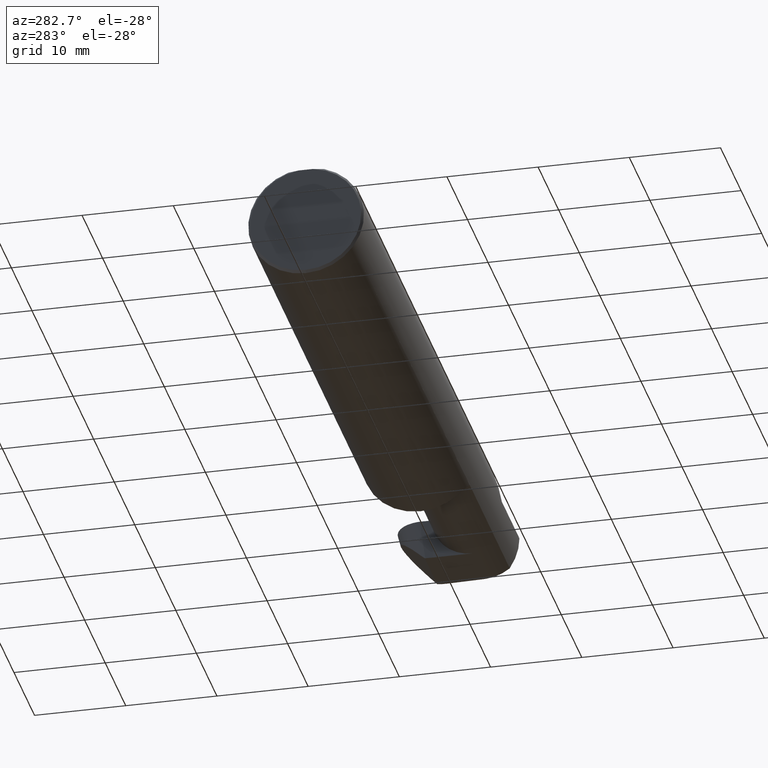
[diagram: clean part render]
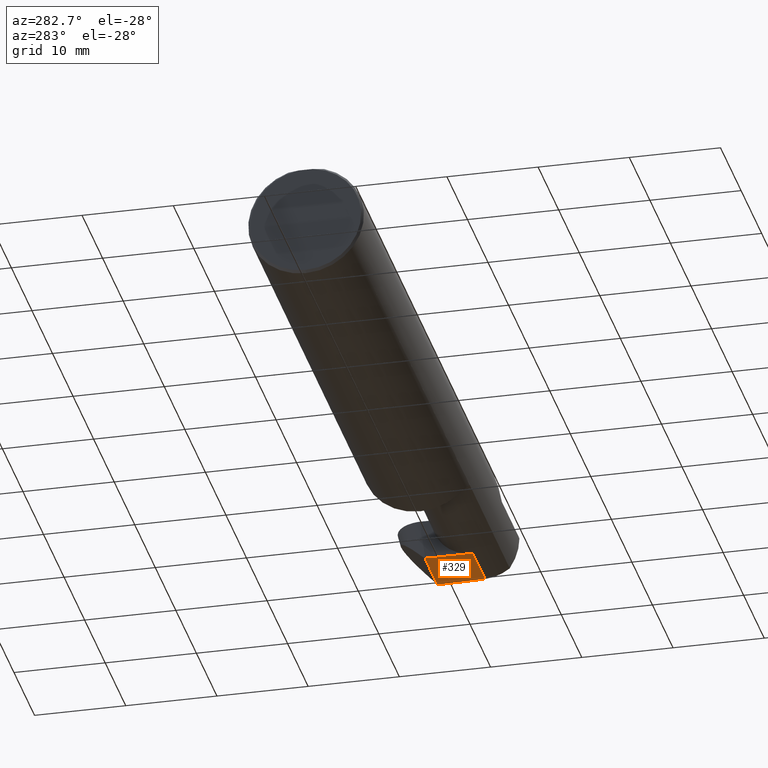
[diagram: same view with one face highlighted and labeled with its STEP entity id]
A machine part, auxiliary view. The second image highlights one B-rep face of the part: STEP entity #329.
In plain terms, the highlighted planar face has unit normal (-0, 0, 1).
Its self-contained STEP definition (entity closure, byte-faithful):
#9 = CARTESIAN_POINT ( 'NONE',  ( 2.753585465288466594, -0.1010545757111809412, -0.1750000000000000722 ) ) ;
#16 = CARTESIAN_POINT ( 'NONE',  ( 2.990641147540828104, 0.1058243371481696476, -0.1750000000000001277 ) ) ;
#24 = LINE ( 'NONE', #9, #178 ) ;
#27 = EDGE_CURVE ( 'NONE', #128, #174, #24, .T. ) ;
#28 =( BOUNDED_CURVE ( )  B_SPLINE_CURVE ( 3, ( #637, #188, #231, #290 ),
 .UNSPECIFIED., .F., .T. ) 
 B_SPLINE_CURVE_WITH_KNOTS ( ( 4, 4 ),
 ( 4.955210089620395664, 4.975001206325426750 ),
 .UNSPECIFIED. ) 
 CURVE ( )  GEOMETRIC_REPRESENTATION_ITEM ( )  RATIONAL_B_SPLINE_CURVE ( ( 1.000000000000000000, 0.9999673595746501054, 0.9999673595746501054, 1.000000000000000000 ) ) 
 REPRESENTATION_ITEM ( '' )  );
#37 = DIRECTION ( 'NONE',  ( -1.000000000000000000, -0.000000000000000000, -0.000000000000000000 ) ) ;
#59 = CARTESIAN_POINT ( 'NONE',  ( 3.402190948718819552, -0.1008499999999995372, -0.1750000000000000722 ) ) ;
#79 = CARTESIAN_POINT ( 'NONE',  ( 2.995563461189592047, 0.07983311256960280711, -0.1750000000000001277 ) ) ;
#95 =( BOUNDED_CURVE ( )  B_SPLINE_CURVE ( 3, ( #375, #416, #79, #364 ),
 .UNSPECIFIED., .F., .T. ) 
 B_SPLINE_CURVE_WITH_KNOTS ( ( 4, 4 ),
 ( 4.339337998362998050, 4.645220385064936508 ),
 .UNSPECIFIED. ) 
 CURVE ( )  GEOMETRIC_REPRESENTATION_ITEM ( )  RATIONAL_B_SPLINE_CURVE ( ( 1.000000000000000000, 0.9922181835937360361, 0.9922181835937360361, 1.000000000000000000 ) ) 
 REPRESENTATION_ITEM ( '' )  );
#96 = CARTESIAN_POINT ( 'NONE',  ( 2.753585400763539415, -0.1008500000000000091, -0.1750000000000000444 ) ) ;
#120 = DIRECTION ( 'NONE',  ( 0.000000000000000000, -1.000000000000000000, 1.223176342469858371E-16 ) ) ;
#128 = VERTEX_POINT ( 'NONE', #96 ) ;
#139 = VECTOR ( 'NONE', #291, 39.37007874015748854 ) ;
#142 = EDGE_CURVE ( 'NONE', #174, #385, #615, .T. ) ;
#150 = DIRECTION ( 'NONE',  ( 1.000000000000000000, -0.000000000000000000, -0.000000000000000000 ) ) ;
#164 = VECTOR ( 'NONE', #37, 39.37007874015748143 ) ;
#168 = CARTESIAN_POINT ( 'NONE',  ( 3.402190948718819552, -0.1008499999999995372, -0.1750000000000000722 ) ) ;
#169 = CARTESIAN_POINT ( 'NONE',  ( 2.753531167726741113, 0.07109536363756174815, -0.1750000000000001277 ) ) ;
#174 = VERTEX_POINT ( 'NONE', #169 ) ;
#178 = VECTOR ( 'NONE', #478, 39.37007874015748854 ) ;
#182 = CARTESIAN_POINT ( 'NONE',  ( 2.989756814851906697, -0.08644748268070674702, -0.1750000000000000722 ) ) ;
#183 = ORIENTED_EDGE ( 'NONE', *, *, #693, .T. ) ;
#185 = PLANE ( 'NONE',  #368 ) ;
#188 = CARTESIAN_POINT ( 'NONE',  ( 2.752599177285632415, 0.1041970330334760914, -0.1750000000000001277 ) ) ;
#190 = VECTOR ( 'NONE', #228, 39.37007874015748854 ) ;
#226 = CARTESIAN_POINT ( 'NONE',  ( -0.002039370078740339320, 0.1058243371481696476, -0.1750000000000001277 ) ) ;
#228 = DIRECTION ( 'NONE',  ( -0.03489949670249486297, 0.9993908270190959842, -1.222058880457094394E-16 ) ) ;
#231 = CARTESIAN_POINT ( 'NONE',  ( 2.752802398054977839, 0.1050117459796568176, -0.1750000000000001277 ) ) ;
#290 = CARTESIAN_POINT ( 'NONE',  ( 2.753013396079577735, 0.1058243371481696476, -0.1750000000000001277 ) ) ;
#291 = DIRECTION ( 'NONE',  ( -0.03489949670249542502, -0.9993908270190959842, 1.222058880457094394E-16 ) ) ;
#298 = DIRECTION ( 'NONE',  ( -0.000000000000000000, 1.223176342469858371E-16, 1.000000000000000000 ) ) ;
#324 = CARTESIAN_POINT ( 'NONE',  ( 2.760318370161228163, -0.1232646843588789676, -0.1750000000000000722 ) ) ;
#329 = ADVANCED_FACE ( 'NONE', ( #571 ), #185, .F. ) ;
#337 = LINE ( 'NONE', #168, #164 ) ;
#350 = EDGE_CURVE ( 'NONE', #509, #601, #452, .T. ) ;
#364 = CARTESIAN_POINT ( 'NONE',  ( 2.995099234303557623, 0.06653939388036607394, -0.1750000000000001277 ) ) ;
#368 = AXIS2_PLACEMENT_3D ( 'NONE', #59, #298, #120 ) ;
#375 = CARTESIAN_POINT ( 'NONE',  ( 2.990641147540828104, 0.1058243371481696476, -0.1750000000000001277 ) ) ;
#377 = CARTESIAN_POINT ( 'NONE',  ( 2.753013396079577735, 0.1058243371481696476, -0.1750000000000001277 ) ) ;
#380 = CARTESIAN_POINT ( 'NONE',  ( 2.989253867864499092, -0.1008499999999995372, -0.1750000000000000722 ) ) ;
#385 = VERTEX_POINT ( 'NONE', #643 ) ;
#393 = ORIENTED_EDGE ( 'NONE', *, *, #27, .T. ) ;
#396 = ORIENTED_EDGE ( 'NONE', *, *, #554, .T. ) ;
#416 = CARTESIAN_POINT ( 'NONE',  ( 2.994065777569717479, 0.09303079560524193936, -0.1750000000000001277 ) ) ;
#420 = ORIENTED_EDGE ( 'NONE', *, *, #142, .T. ) ;
#441 = ORIENTED_EDGE ( 'NONE', *, *, #666, .T. ) ;
#444 = VERTEX_POINT ( 'NONE', #16 ) ;
#450 = ORIENTED_EDGE ( 'NONE', *, *, #350, .T. ) ;
#452 = LINE ( 'NONE', #182, #139 ) ;
#455 = EDGE_CURVE ( 'NONE', #444, #509, #95, .T. ) ;
#478 = DIRECTION ( 'NONE',  ( -0.0003154085283454350426, 0.9999999502587288980, -1.223178646569383192E-16 ) ) ;
#482 = ORIENTED_EDGE ( 'NONE', *, *, #455, .T. ) ;
#487 = VERTEX_POINT ( 'NONE', #377 ) ;
#509 = VERTEX_POINT ( 'NONE', #596 ) ;
#554 = EDGE_CURVE ( 'NONE', #601, #128, #337, .T. ) ;
#571 = FACE_OUTER_BOUND ( 'NONE', #572, .T. ) ;
#572 = EDGE_LOOP ( 'NONE', ( #420, #183, #441, #482, #450, #396, #393 ) ) ;
#596 = CARTESIAN_POINT ( 'NONE',  ( 2.995099234303557623, 0.06653939388036607394, -0.1750000000000001277 ) ) ;
#601 = VERTEX_POINT ( 'NONE', #380 ) ;
#615 = LINE ( 'NONE', #324, #190 ) ;
#637 = CARTESIAN_POINT ( 'NONE',  ( 2.752403753671178954, 0.1033802780873585708, -0.1750000000000001277 ) ) ;
#643 = CARTESIAN_POINT ( 'NONE',  ( 2.752403753671178954, 0.1033802780873585708, -0.1750000000000001277 ) ) ;
#666 = EDGE_CURVE ( 'NONE', #487, #444, #732, .T. ) ;
#693 = EDGE_CURVE ( 'NONE', #385, #487, #28, .T. ) ;
#705 = VECTOR ( 'NONE', #150, 39.37007874015748143 ) ;
#732 = LINE ( 'NONE', #226, #705 ) ;